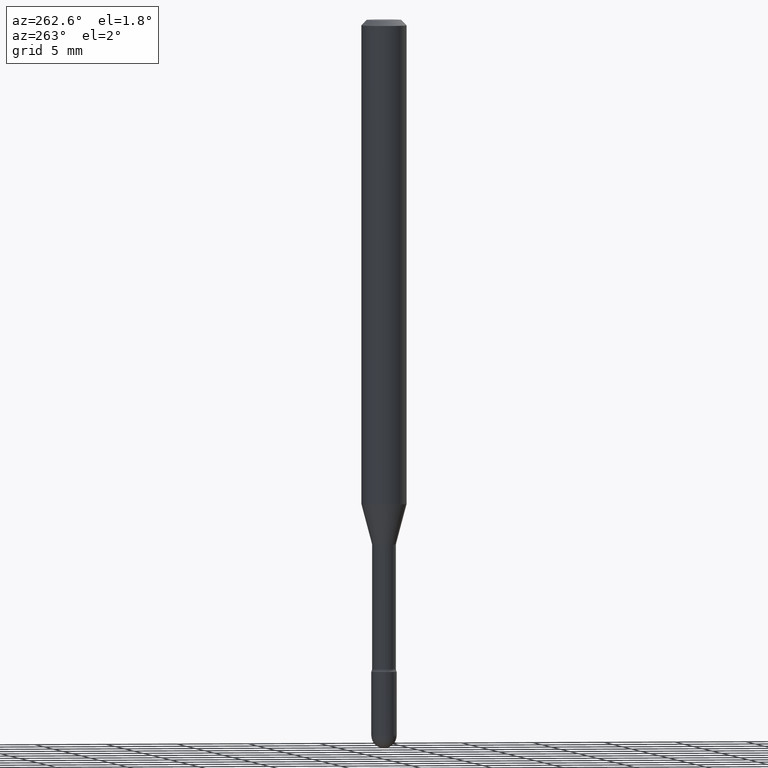
[diagram: clean part render]
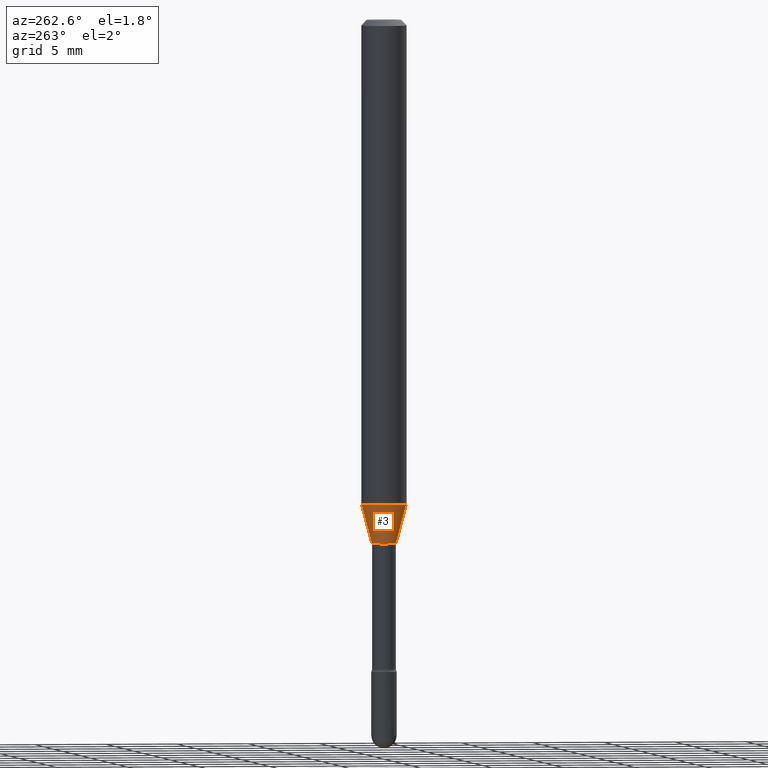
[diagram: same view with one face highlighted and labeled with its STEP entity id]
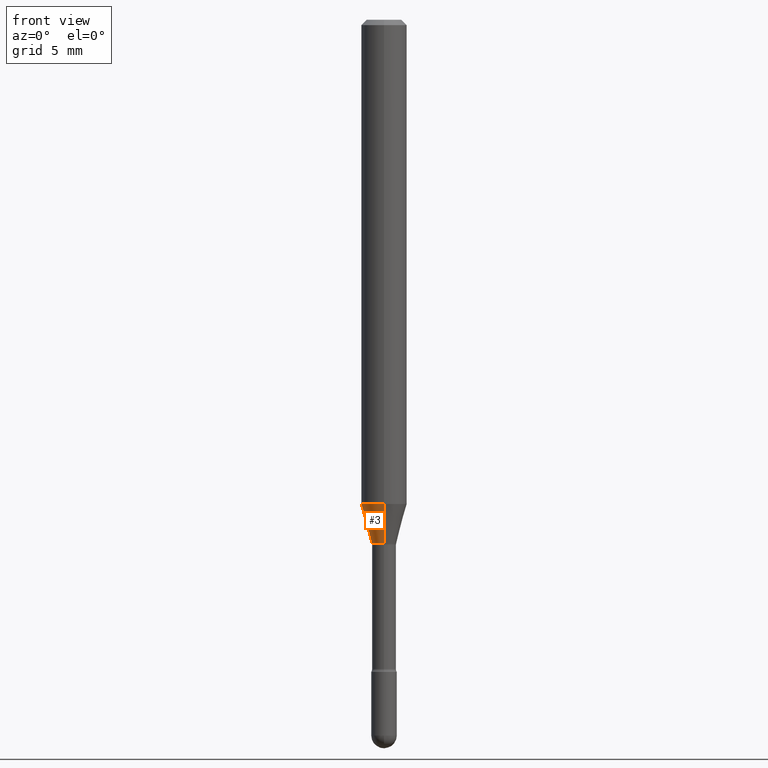
[diagram: same view with one face highlighted and labeled with its STEP entity id]
A machine part, auxiliary view. The second image highlights one B-rep face of the part: STEP entity #3.
A second angle (front view) of the same face is appended — the face is thin or edge-on in the first view.
In plain terms, the highlighted conical surface has half-angle 15 deg.
Its self-contained STEP definition (entity closure, byte-faithful):
#3 = ADVANCED_FACE ( 'NONE', ( #76 ), #390, .T. ) ;
#6 = ORIENTED_EDGE ( 'NONE', *, *, #102, .F. ) ;
#11 = ORIENTED_EDGE ( 'NONE', *, *, #199, .T. ) ;
#41 = ORIENTED_EDGE ( 'NONE', *, *, #537, .F. ) ;
#58 = DIRECTION ( 'NONE',  ( -6.982962677686265922E-15, -1.000000000000000000, 0.000000000000000000 ) ) ;
#60 = CARTESIAN_POINT ( 'NONE',  ( -4.364351673553592768E-16, -0.06250000000000467681, -1.329531296095961101 ) ) ;
#76 = FACE_OUTER_BOUND ( 'NONE', #150, .T. ) ;
#80 = CARTESIAN_POINT ( 'NONE',  ( 3.251365704841097934E-29, -4.641978728205103183E-15, -1.329531296095961546 ) ) ;
#102 = EDGE_CURVE ( 'NONE', #477, #106, #523, .T. ) ;
#105 = CARTESIAN_POINT ( 'NONE',  ( -2.333085523452890459E-16, -0.03341111260566893143, -1.438092501787273658 ) ) ;
#106 = VERTEX_POINT ( 'NONE', #393 ) ;
#111 = DIRECTION ( 'NONE',  ( 1.839019923739594793E-15, 0.2588190451025241812, 0.9659258262890673130 ) ) ;
#118 = CARTESIAN_POINT ( 'NONE',  ( 2.374002335562071771E-16, 0.03341111260565889085, -1.438092501787273658 ) ) ;
#132 = AXIS2_PLACEMENT_3D ( 'NONE', #80, #343, #146 ) ;
#142 = CIRCLE ( 'NONE', #269, 0.03341111260566390767 ) ;
#146 = DIRECTION ( 'NONE',  ( -6.982962677686265922E-15, -1.000000000000000000, 4.370956789862821150E-15 ) ) ;
#150 = EDGE_LOOP ( 'NONE', ( #6, #213, #11, #41 ) ) ;
#151 = VECTOR ( 'NONE', #111, 39.37007874015748854 ) ;
#168 = VERTEX_POINT ( 'NONE', #563 ) ;
#173 = CARTESIAN_POINT ( 'NONE',  ( 3.516851881885144057E-29, -5.021013662551617975E-15, -1.438092501787273658 ) ) ;
#199 = EDGE_CURVE ( 'NONE', #168, #484, #432, .T. ) ;
#201 = DIRECTION ( 'NONE',  ( -2.445497683573463397E-29, 3.491439984779462686E-15, 1.000000000000000000 ) ) ;
#213 = ORIENTED_EDGE ( 'NONE', *, *, #401, .T. ) ;
#263 = VECTOR ( 'NONE', #285, 39.37007874015748854 ) ;
#269 = AXIS2_PLACEMENT_3D ( 'NONE', #173, #502, #58 ) ;
#285 = DIRECTION ( 'NONE',  ( -1.807323732225324617E-15, -0.2588190451025174088, 0.9659258262890690894 ) ) ;
#286 = DIRECTION ( 'NONE',  ( -6.982962677686265922E-15, -1.000000000000000000, 0.000000000000000000 ) ) ;
#343 = DIRECTION ( 'NONE',  ( -2.445497683573463397E-29, 3.491439984779462686E-15, 1.000000000000000000 ) ) ;
#390 = CONICAL_SURFACE ( 'NONE', #564, 0.03341111260566390767, 0.2617993877991495189 ) ;
#393 = CARTESIAN_POINT ( 'NONE',  ( 4.440892098500948609E-16, 0.06249999999999532319, -1.329531296095961768 ) ) ;
#401 = EDGE_CURVE ( 'NONE', #477, #168, #142, .T. ) ;
#432 = LINE ( 'NONE', #105, #263 ) ;
#456 = CARTESIAN_POINT ( 'NONE',  ( 3.407447217031512162E-16, 0.03341111260565888391, -1.438092501787273658 ) ) ;
#470 = CARTESIAN_POINT ( 'NONE',  ( 3.516851881885144057E-29, -5.021013662551617975E-15, -1.438092501787273658 ) ) ;
#477 = VERTEX_POINT ( 'NONE', #456 ) ;
#484 = VERTEX_POINT ( 'NONE', #60 ) ;
#502 = DIRECTION ( 'NONE',  ( -2.445497683573463397E-29, 3.491439984779462686E-15, 1.000000000000000000 ) ) ;
#523 = LINE ( 'NONE', #118, #151 ) ;
#524 = CIRCLE ( 'NONE', #132, 0.06250000000000000000 ) ;
#537 = EDGE_CURVE ( 'NONE', #106, #484, #524, .T. ) ;
#563 = CARTESIAN_POINT ( 'NONE',  ( -2.333085523452890459E-16, -0.03341111260566893143, -1.438092501787273658 ) ) ;
#564 = AXIS2_PLACEMENT_3D ( 'NONE', #470, #201, #286 ) ;